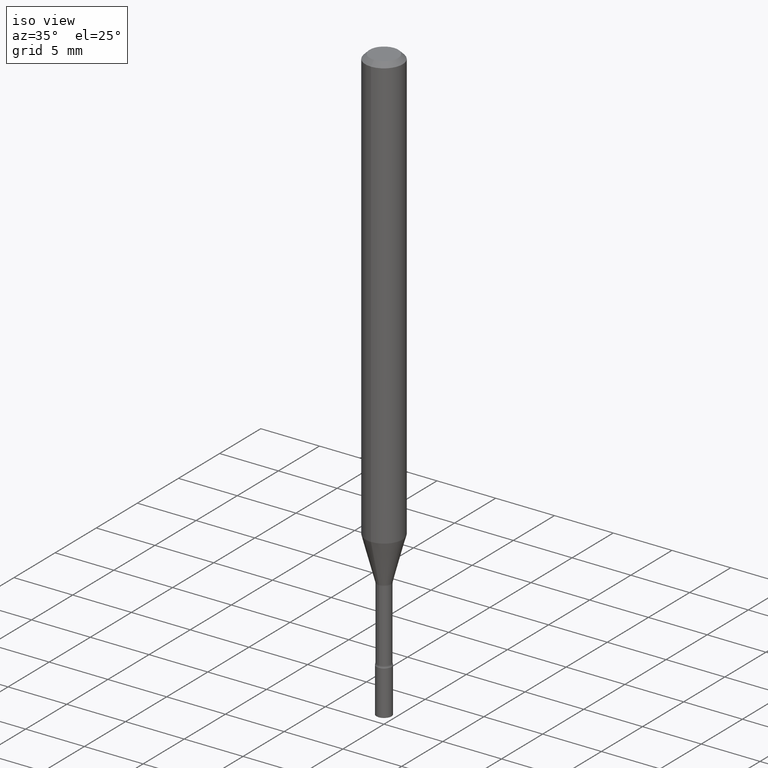
[diagram: clean part render]
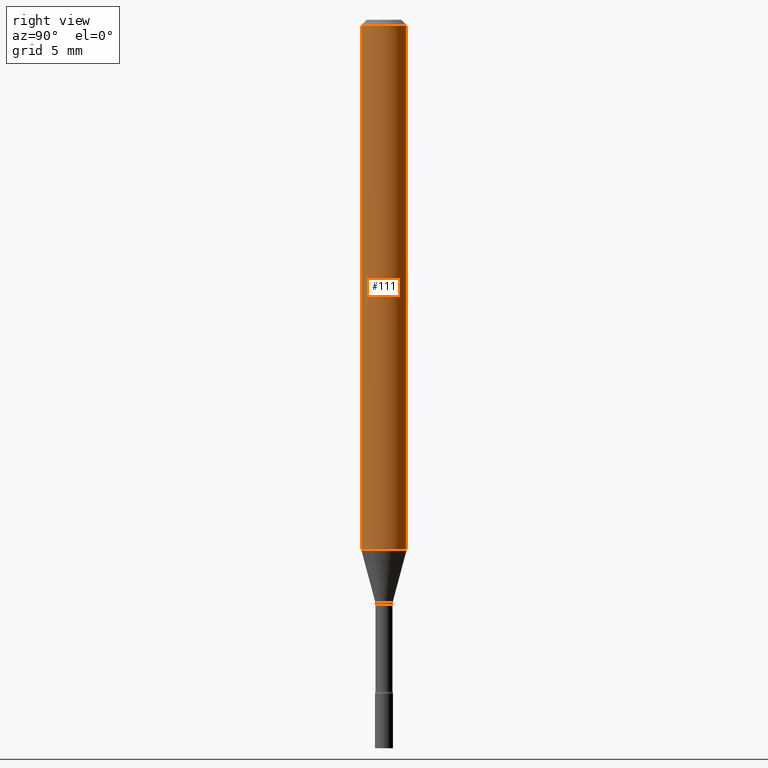
[diagram: tour spotlight — one face highlighted and labeled with its STEP entity id]
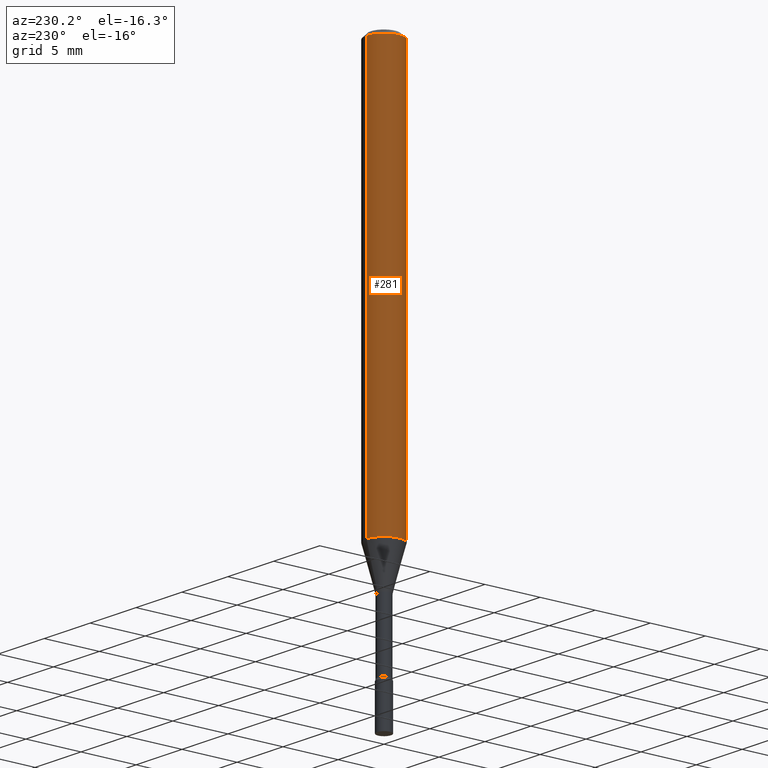
[diagram: tour spotlight — one face highlighted and labeled with its STEP entity id]
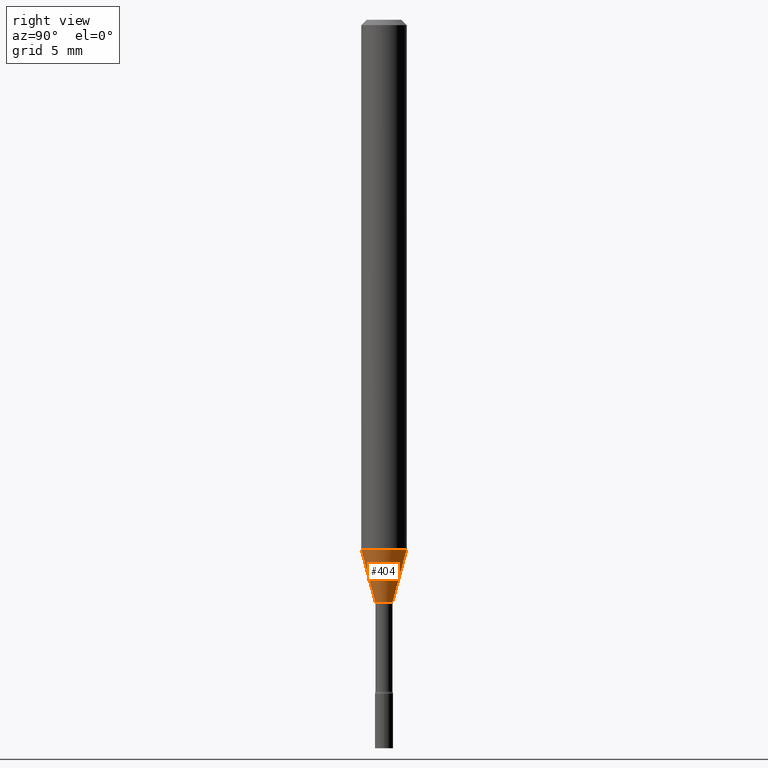
[diagram: tour spotlight — one face highlighted and labeled with its STEP entity id]
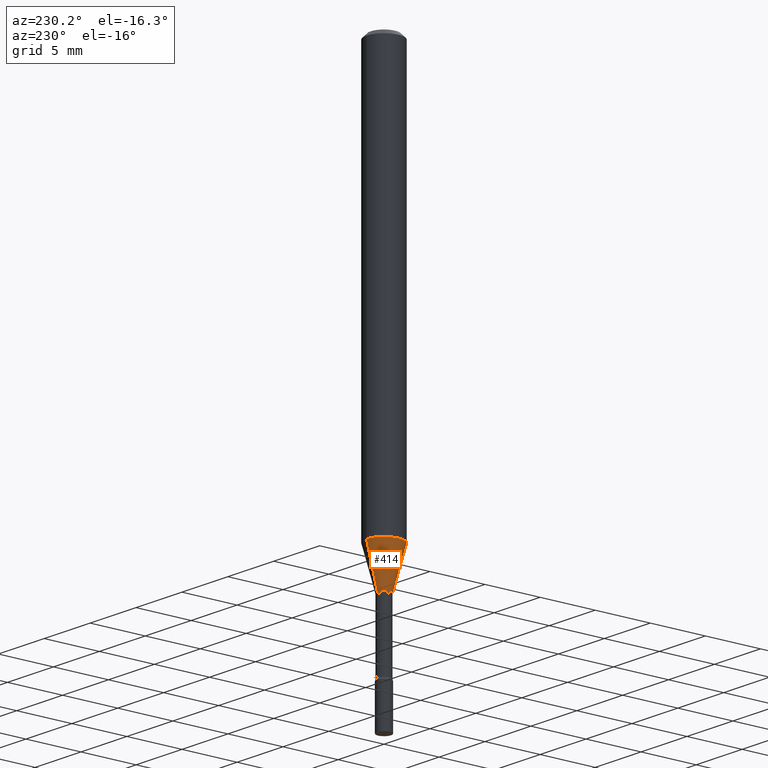
[diagram: tour spotlight — one face highlighted and labeled with its STEP entity id]
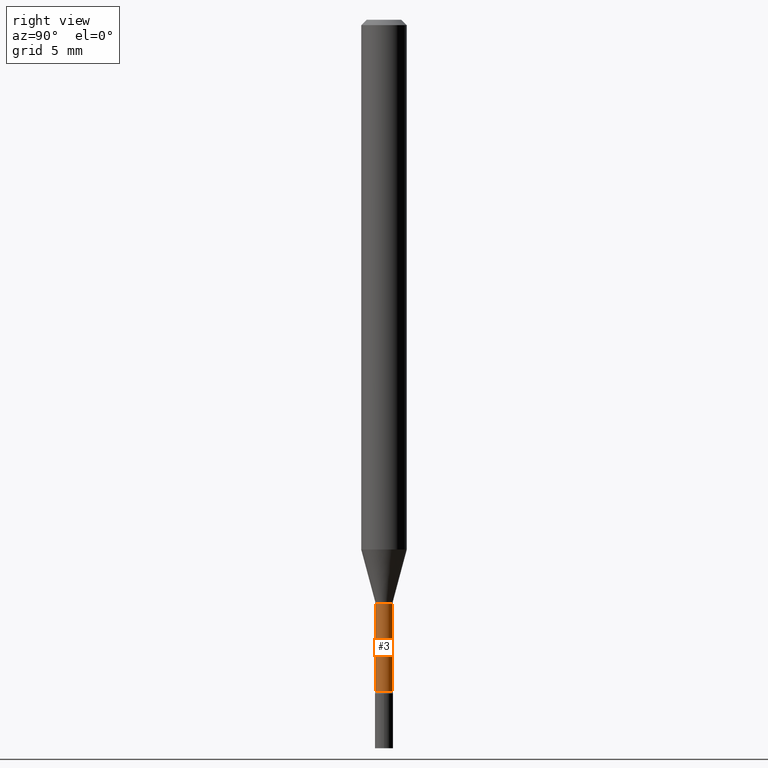
[diagram: tour spotlight — one face highlighted and labeled with its STEP entity id]
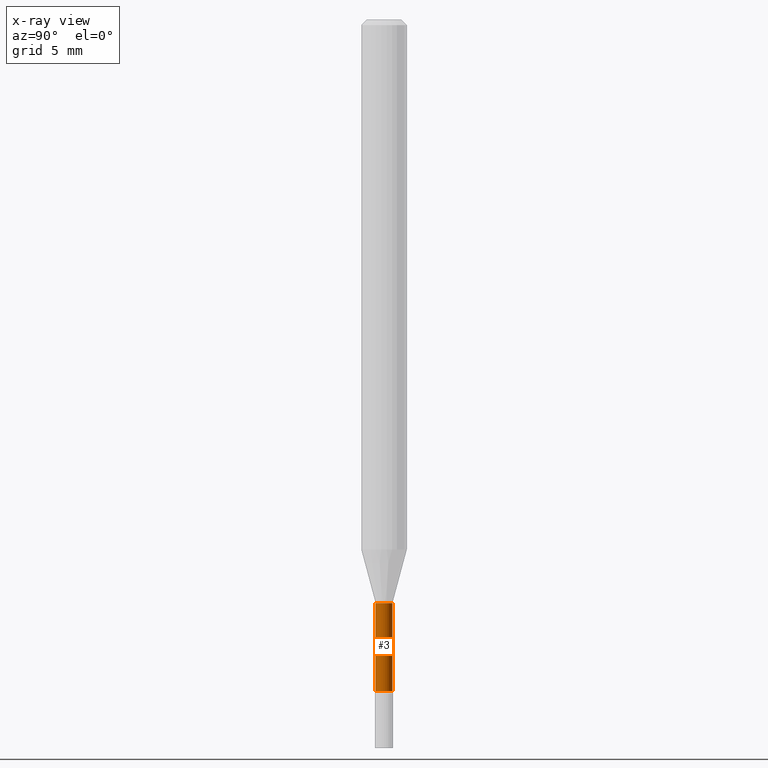
[diagram: x-ray of the same camera — body ghosted, this tour face saturated]
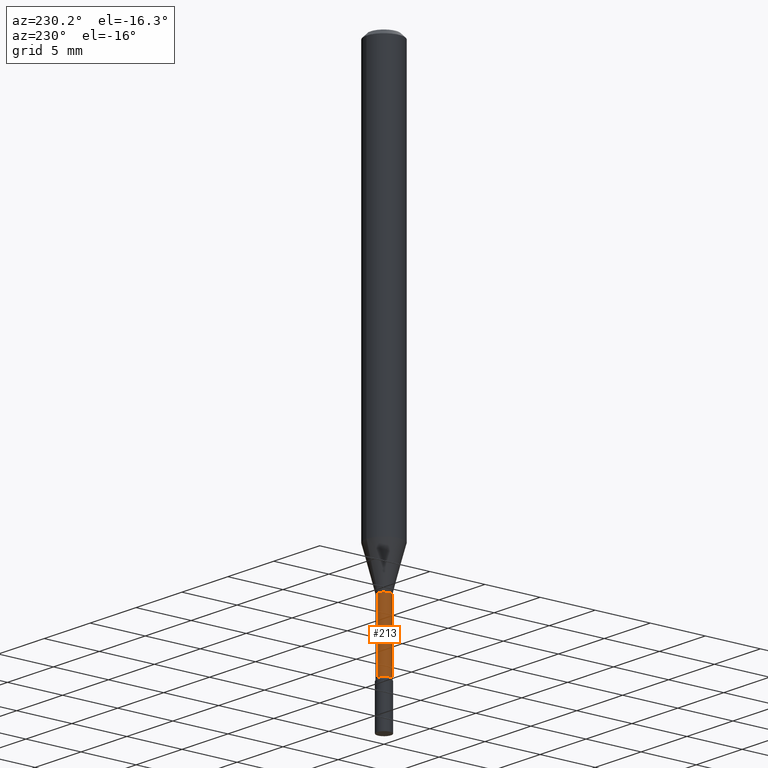
[diagram: tour spotlight — one face highlighted and labeled with its STEP entity id]
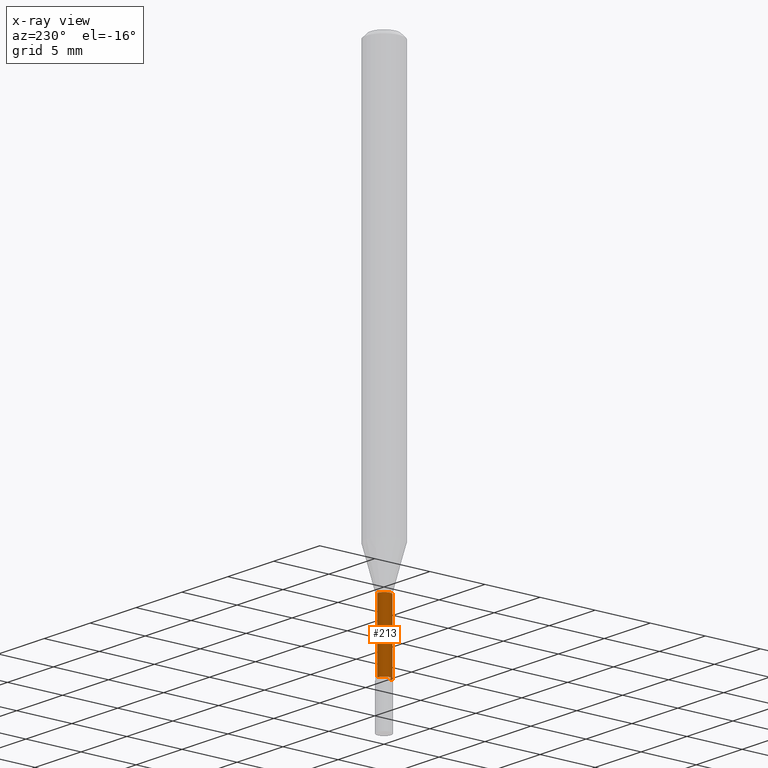
[diagram: x-ray of the same camera — body ghosted, this tour face saturated]
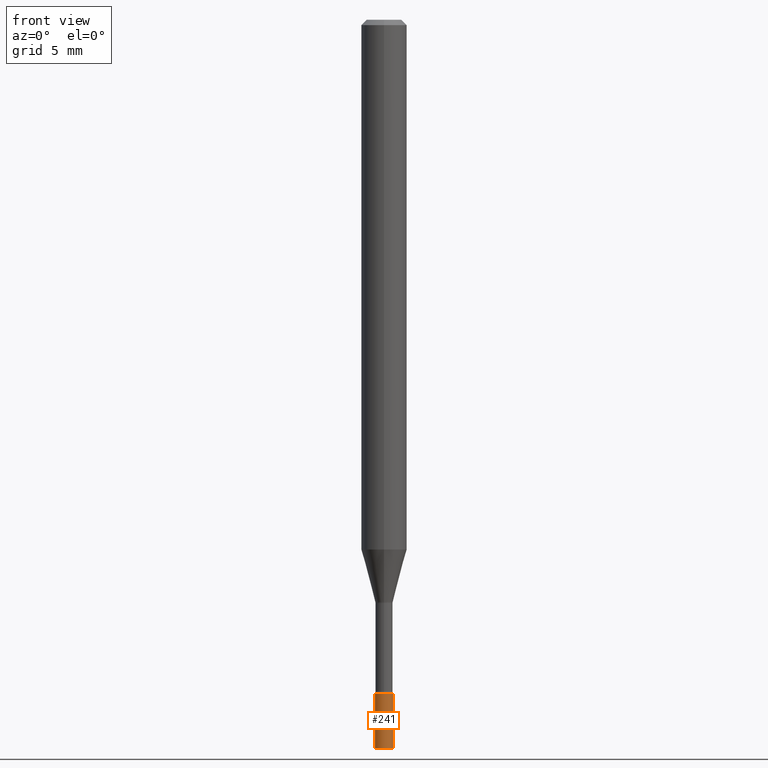
[diagram: tour spotlight — one face highlighted and labeled with its STEP entity id]
A machine part: a face-by-face anatomy tour. The part has 18 B-rep faces; the first image is the clean iso view, then the 7 largest visible faces are spotlighted one at a time (largest first), each with its STEP entity span.

Face 1 — right view, entity #111. In plain terms, the highlighted cylindrical surface (edge-blend (fillet) strip) has radius 1.5875 mm, axis along (-0, 0, 1).
Definition (entity closure, byte-faithful):
#20 = DIRECTION ( 'NONE',  ( -2.445421542730464824E-29, 3.491549022800303850E-15, 1.000000000000000000 ) ) ;
#37 = ORIENTED_EDGE ( 'NONE', *, *, #203, .F. ) ;
#40 = ORIENTED_EDGE ( 'NONE', *, *, #195, .F. ) ;
#50 = DIRECTION ( 'NONE',  ( -6.982962677686265922E-15, -1.000000000000000000, 3.483106191921935554E-15 ) ) ;
#58 = DIRECTION ( 'NONE',  ( -6.982962677686265922E-15, -1.000000000000000000, 4.370956789862821150E-15 ) ) ;
#88 = VECTOR ( 'NONE', #20, 39.37007874015748143 ) ;
#97 = LINE ( 'NONE', #495, #103 ) ;
#100 = DIRECTION ( 'NONE',  ( -2.445421542730464824E-29, 3.491549022800304245E-15, 1.000000000000000000 ) ) ;
#103 = VECTOR ( 'NONE', #343, 39.37007874015748143 ) ;
#111 = ADVANCED_FACE ( 'NONE', ( #133 ), #330, .T. ) ;
#112 = ORIENTED_EDGE ( 'NONE', *, *, #230, .T. ) ;
#114 = AXIS2_PLACEMENT_3D ( 'NONE', #338, #498, #58 ) ;
#133 = FACE_OUTER_BOUND ( 'NONE', #516, .T. ) ;
#134 = CARTESIAN_POINT ( 'NONE',  ( -4.364351673553912750E-16, -0.06250000000000005551, -0.01499999999999981209 ) ) ;
#151 = CARTESIAN_POINT ( 'NONE',  ( -4.364351673553561707E-16, -0.06250000000000509315, -1.454450018504813924 ) ) ;
#168 = CARTESIAN_POINT ( 'NONE',  ( 3.668132314095704891E-31, -5.237323534200467140E-17, -0.01500000000000003067 ) ) ;
#184 = CIRCLE ( 'NONE', #114, 0.06250000000000000000 ) ;
#189 = ORIENTED_EDGE ( 'NONE', *, *, #261, .T. ) ;
#195 = EDGE_CURVE ( 'NONE', #235, #352, #309, .T. ) ;
#203 = EDGE_CURVE ( 'NONE', #403, #235, #334, .T. ) ;
#230 = EDGE_CURVE ( 'NONE', #263, #352, #97, .T. ) ;
#235 = VERTEX_POINT ( 'NONE', #134 ) ;
#261 = EDGE_CURVE ( 'NONE', #403, #263, #184, .T. ) ;
#263 = VERTEX_POINT ( 'NONE', #299 ) ;
#290 = DIRECTION ( 'NONE',  ( -6.982962677686265922E-15, -1.000000000000000000, 3.491549022800304245E-15 ) ) ;
#299 = CARTESIAN_POINT ( 'NONE',  ( 4.440892098500979177E-16, 0.06249999999999489991, -1.454450018504814368 ) ) ;
#307 = CARTESIAN_POINT ( 'NONE',  ( 4.440892098500983121E-16, 0.06249999999999995143, -0.01500000000000024751 ) ) ;
#309 = CIRCLE ( 'NONE', #416, 0.06250000000000000000 ) ;
#330 = CYLINDRICAL_SURFACE ( 'NONE', #373, 0.06250000000000000000 ) ;
#334 = LINE ( 'NONE', #451, #88 ) ;
#338 = CARTESIAN_POINT ( 'NONE',  ( 3.556743408076396207E-29, -5.078283540822369655E-15, -1.454450018504814146 ) ) ;
#343 = DIRECTION ( 'NONE',  ( -2.445421542730464824E-29, 3.491549022800303850E-15, 1.000000000000000000 ) ) ;
#352 = VERTEX_POINT ( 'NONE', #307 ) ;
#373 = AXIS2_PLACEMENT_3D ( 'NONE', #454, #499, #290 ) ;
#403 = VERTEX_POINT ( 'NONE', #151 ) ;
#416 = AXIS2_PLACEMENT_3D ( 'NONE', #168, #100, #50 ) ;
#451 = CARTESIAN_POINT ( 'NONE',  ( -4.364351673553916201E-16, -0.06250000000000000000, 2.182218139250190153E-16 ) ) ;
#454 = CARTESIAN_POINT ( 'NONE',  ( 0.000000000000000000, 0.000000000000000000, 0.000000000000000000 ) ) ;
#495 = CARTESIAN_POINT ( 'NONE',  ( 4.440892098500625669E-16, 0.06250000000000000000, -2.182218139250190153E-16 ) ) ;
#498 = DIRECTION ( 'NONE',  ( -2.445421542730464824E-29, 3.491549022800304245E-15, 1.000000000000000000 ) ) ;
#499 = DIRECTION ( 'NONE',  ( -2.445421542730464824E-29, 3.491549022800304245E-15, 1.000000000000000000 ) ) ;
#516 = EDGE_LOOP ( 'NONE', ( #189, #112, #40, #37 ) ) ;

Face 2 — auxiliary view, entity #281. In plain terms, the highlighted cylindrical surface (edge-blend (fillet) strip) has radius 1.5875 mm, axis along (-0, 0, 1).
Definition (entity closure, byte-faithful):
#20 = DIRECTION ( 'NONE',  ( -2.445421542730464824E-29, 3.491549022800303850E-15, 1.000000000000000000 ) ) ;
#30 = ORIENTED_EDGE ( 'NONE', *, *, #230, .F. ) ;
#70 = DIRECTION ( 'NONE',  ( -6.982962677686265922E-15, -1.000000000000000000, 4.370956789862821150E-15 ) ) ;
#88 = VECTOR ( 'NONE', #20, 39.37007874015748143 ) ;
#97 = LINE ( 'NONE', #495, #103 ) ;
#103 = VECTOR ( 'NONE', #343, 39.37007874015748143 ) ;
#134 = CARTESIAN_POINT ( 'NONE',  ( -4.364351673553912750E-16, -0.06250000000000005551, -0.01499999999999981209 ) ) ;
#151 = CARTESIAN_POINT ( 'NONE',  ( -4.364351673553561707E-16, -0.06250000000000509315, -1.454450018504813924 ) ) ;
#180 = CARTESIAN_POINT ( 'NONE',  ( 3.556743408076396207E-29, -5.078283540822369655E-15, -1.454450018504814146 ) ) ;
#191 = DIRECTION ( 'NONE',  ( -2.445421542730464824E-29, 3.491549022800304245E-15, 1.000000000000000000 ) ) ;
#202 = DIRECTION ( 'NONE',  ( -6.982962677686265922E-15, -1.000000000000000000, 3.491549022800304245E-15 ) ) ;
#203 = EDGE_CURVE ( 'NONE', #403, #235, #334, .T. ) ;
#214 = FACE_OUTER_BOUND ( 'NONE', #322, .T. ) ;
#230 = EDGE_CURVE ( 'NONE', #263, #352, #97, .T. ) ;
#235 = VERTEX_POINT ( 'NONE', #134 ) ;
#237 = AXIS2_PLACEMENT_3D ( 'NONE', #180, #312, #70 ) ;
#263 = VERTEX_POINT ( 'NONE', #299 ) ;
#274 = CARTESIAN_POINT ( 'NONE',  ( 3.668132314095704891E-31, -5.237323534200467140E-17, -0.01500000000000003067 ) ) ;
#281 = ADVANCED_FACE ( 'NONE', ( #214 ), #487, .T. ) ;
#299 = CARTESIAN_POINT ( 'NONE',  ( 4.440892098500979177E-16, 0.06249999999999489991, -1.454450018504814368 ) ) ;
#307 = CARTESIAN_POINT ( 'NONE',  ( 4.440892098500983121E-16, 0.06249999999999995143, -0.01500000000000024751 ) ) ;
#312 = DIRECTION ( 'NONE',  ( -2.445421542730464824E-29, 3.491549022800304245E-15, 1.000000000000000000 ) ) ;
#320 = ORIENTED_EDGE ( 'NONE', *, *, #356, .T. ) ;
#322 = EDGE_LOOP ( 'NONE', ( #30, #320, #350, #519 ) ) ;
#334 = LINE ( 'NONE', #451, #88 ) ;
#340 = CIRCLE ( 'NONE', #436, 0.06250000000000000000 ) ;
#343 = DIRECTION ( 'NONE',  ( -2.445421542730464824E-29, 3.491549022800303850E-15, 1.000000000000000000 ) ) ;
#350 = ORIENTED_EDGE ( 'NONE', *, *, #203, .T. ) ;
#352 = VERTEX_POINT ( 'NONE', #307 ) ;
#356 = EDGE_CURVE ( 'NONE', #263, #403, #429, .T. ) ;
#370 = CARTESIAN_POINT ( 'NONE',  ( 0.000000000000000000, 0.000000000000000000, 0.000000000000000000 ) ) ;
#393 = AXIS2_PLACEMENT_3D ( 'NONE', #370, #410, #202 ) ;
#403 = VERTEX_POINT ( 'NONE', #151 ) ;
#410 = DIRECTION ( 'NONE',  ( -2.445421542730464824E-29, 3.491549022800304245E-15, 1.000000000000000000 ) ) ;
#429 = CIRCLE ( 'NONE', #237, 0.06250000000000000000 ) ;
#436 = AXIS2_PLACEMENT_3D ( 'NONE', #274, #191, #439 ) ;
#439 = DIRECTION ( 'NONE',  ( -6.982962677686265922E-15, -1.000000000000000000, 3.483106191921935554E-15 ) ) ;
#451 = CARTESIAN_POINT ( 'NONE',  ( -4.364351673553916201E-16, -0.06250000000000000000, 2.182218139250190153E-16 ) ) ;
#487 = CYLINDRICAL_SURFACE ( 'NONE', #393, 0.06250000000000000000 ) ;
#488 = EDGE_CURVE ( 'NONE', #352, #235, #340, .T. ) ;
#495 = CARTESIAN_POINT ( 'NONE',  ( 4.440892098500625669E-16, 0.06250000000000000000, -2.182218139250190153E-16 ) ) ;
#519 = ORIENTED_EDGE ( 'NONE', *, *, #488, .F. ) ;

Face 3 — right view, entity #404. In plain terms, the highlighted conical surface has half-angle 15 deg.
Definition (entity closure, byte-faithful):
#28 = DIRECTION ( 'NONE',  ( -1.807323732225330534E-15, -0.2588190451025182415, 0.9659258262890689783 ) ) ;
#46 = CARTESIAN_POINT ( 'NONE',  ( 3.908009831146620796E-29, -5.579818312959846669E-15, -1.598092501787272912 ) ) ;
#58 = DIRECTION ( 'NONE',  ( -6.982962677686265922E-15, -1.000000000000000000, 4.370956789862821150E-15 ) ) ;
#64 = CARTESIAN_POINT ( 'NONE',  ( -1.676687031750347678E-16, -0.02401111260566956770, -1.598092501787272912 ) ) ;
#68 = EDGE_CURVE ( 'NONE', #314, #481, #446, .T. ) ;
#72 = CARTESIAN_POINT ( 'NONE',  ( 3.073492131224302841E-16, 0.02401111260565840649, -1.598092501787272912 ) ) ;
#81 = ORIENTED_EDGE ( 'NONE', *, *, #431, .F. ) ;
#114 = AXIS2_PLACEMENT_3D ( 'NONE', #338, #498, #58 ) ;
#118 = EDGE_LOOP ( 'NONE', ( #510, #257, #268, #81 ) ) ;
#140 = VECTOR ( 'NONE', #174, 39.37007874015748143 ) ;
#151 = CARTESIAN_POINT ( 'NONE',  ( -4.364351673553561707E-16, -0.06250000000000509315, -1.454450018504813924 ) ) ;
#163 = AXIS2_PLACEMENT_3D ( 'NONE', #351, #475, #193 ) ;
#174 = DIRECTION ( 'NONE',  ( 1.839019923739600710E-15, 0.2588190451025250138, 0.9659258262890670910 ) ) ;
#184 = CIRCLE ( 'NONE', #114, 0.06250000000000000000 ) ;
#193 = DIRECTION ( 'NONE',  ( -6.982962677686265133E-15, -1.000000000000000000, 0.000000000000000000 ) ) ;
#201 = DIRECTION ( 'NONE',  ( -2.445421542730464824E-29, 3.491549022800304245E-15, 1.000000000000000000 ) ) ;
#208 = CONICAL_SURFACE ( 'NONE', #163, 0.02401111260566398883, 0.2617993877991502960 ) ;
#218 = LINE ( 'NONE', #380, #140 ) ;
#227 = AXIS2_PLACEMENT_3D ( 'NONE', #46, #201, #465 ) ;
#242 = CARTESIAN_POINT ( 'NONE',  ( -1.676687031750347678E-16, -0.02401111260566956770, -1.598092501787272912 ) ) ;
#257 = ORIENTED_EDGE ( 'NONE', *, *, #441, .T. ) ;
#261 = EDGE_CURVE ( 'NONE', #403, #263, #184, .T. ) ;
#263 = VERTEX_POINT ( 'NONE', #299 ) ;
#268 = ORIENTED_EDGE ( 'NONE', *, *, #261, .F. ) ;
#299 = CARTESIAN_POINT ( 'NONE',  ( 4.440892098500979177E-16, 0.06249999999999489991, -1.454450018504814368 ) ) ;
#314 = VERTEX_POINT ( 'NONE', #242 ) ;
#338 = CARTESIAN_POINT ( 'NONE',  ( 3.556743408076396207E-29, -5.078283540822369655E-15, -1.454450018504814146 ) ) ;
#351 = CARTESIAN_POINT ( 'NONE',  ( 3.908009831146620796E-29, -5.579818312959846669E-15, -1.598092501787272912 ) ) ;
#380 = CARTESIAN_POINT ( 'NONE',  ( 1.706092163947622560E-16, 0.02401111260565840996, -1.598092501787272912 ) ) ;
#390 = FACE_OUTER_BOUND ( 'NONE', #118, .T. ) ;
#403 = VERTEX_POINT ( 'NONE', #151 ) ;
#404 = ADVANCED_FACE ( 'NONE', ( #390 ), #208, .T. ) ;
#424 = LINE ( 'NONE', #64, #490 ) ;
#431 = EDGE_CURVE ( 'NONE', #314, #403, #424, .T. ) ;
#441 = EDGE_CURVE ( 'NONE', #481, #263, #218, .T. ) ;
#446 = CIRCLE ( 'NONE', #227, 0.02401111260566398883 ) ;
#465 = DIRECTION ( 'NONE',  ( -6.982962677686265133E-15, -1.000000000000000000, 0.000000000000000000 ) ) ;
#475 = DIRECTION ( 'NONE',  ( -2.445421542730464824E-29, 3.491549022800304245E-15, 1.000000000000000000 ) ) ;
#481 = VERTEX_POINT ( 'NONE', #72 ) ;
#490 = VECTOR ( 'NONE', #28, 39.37007874015748143 ) ;
#498 = DIRECTION ( 'NONE',  ( -2.445421542730464824E-29, 3.491549022800304245E-15, 1.000000000000000000 ) ) ;
#510 = ORIENTED_EDGE ( 'NONE', *, *, #68, .T. ) ;

Face 4 — auxiliary view, entity #414. In plain terms, the highlighted conical surface has half-angle 15 deg.
Definition (entity closure, byte-faithful):
#28 = DIRECTION ( 'NONE',  ( -1.807323732225330534E-15, -0.2588190451025182415, 0.9659258262890689783 ) ) ;
#64 = CARTESIAN_POINT ( 'NONE',  ( -1.676687031750347678E-16, -0.02401111260566956770, -1.598092501787272912 ) ) ;
#70 = DIRECTION ( 'NONE',  ( -6.982962677686265922E-15, -1.000000000000000000, 4.370956789862821150E-15 ) ) ;
#72 = CARTESIAN_POINT ( 'NONE',  ( 3.073492131224302841E-16, 0.02401111260565840649, -1.598092501787272912 ) ) ;
#76 = CIRCLE ( 'NONE', #95, 0.02401111260566398883 ) ;
#83 = ORIENTED_EDGE ( 'NONE', *, *, #356, .F. ) ;
#95 = AXIS2_PLACEMENT_3D ( 'NONE', #183, #266, #430 ) ;
#99 = DIRECTION ( 'NONE',  ( -6.982962677686265133E-15, -1.000000000000000000, 0.000000000000000000 ) ) ;
#109 = DIRECTION ( 'NONE',  ( -2.445421542730464824E-29, 3.491549022800304245E-15, 1.000000000000000000 ) ) ;
#140 = VECTOR ( 'NONE', #174, 39.37007874015748143 ) ;
#151 = CARTESIAN_POINT ( 'NONE',  ( -4.364351673553561707E-16, -0.06250000000000509315, -1.454450018504813924 ) ) ;
#174 = DIRECTION ( 'NONE',  ( 1.839019923739600710E-15, 0.2588190451025250138, 0.9659258262890670910 ) ) ;
#180 = CARTESIAN_POINT ( 'NONE',  ( 3.556743408076396207E-29, -5.078283540822369655E-15, -1.454450018504814146 ) ) ;
#183 = CARTESIAN_POINT ( 'NONE',  ( 3.908009831146620796E-29, -5.579818312959846669E-15, -1.598092501787272912 ) ) ;
#186 = EDGE_LOOP ( 'NONE', ( #399, #190, #298, #83 ) ) ;
#190 = ORIENTED_EDGE ( 'NONE', *, *, #480, .T. ) ;
#218 = LINE ( 'NONE', #380, #140 ) ;
#233 = FACE_OUTER_BOUND ( 'NONE', #186, .T. ) ;
#237 = AXIS2_PLACEMENT_3D ( 'NONE', #180, #312, #70 ) ;
#242 = CARTESIAN_POINT ( 'NONE',  ( -1.676687031750347678E-16, -0.02401111260566956770, -1.598092501787272912 ) ) ;
#263 = VERTEX_POINT ( 'NONE', #299 ) ;
#266 = DIRECTION ( 'NONE',  ( -2.445421542730464824E-29, 3.491549022800304245E-15, 1.000000000000000000 ) ) ;
#287 = CONICAL_SURFACE ( 'NONE', #426, 0.02401111260566398883, 0.2617993877991502960 ) ;
#298 = ORIENTED_EDGE ( 'NONE', *, *, #431, .T. ) ;
#299 = CARTESIAN_POINT ( 'NONE',  ( 4.440892098500979177E-16, 0.06249999999999489991, -1.454450018504814368 ) ) ;
#312 = DIRECTION ( 'NONE',  ( -2.445421542730464824E-29, 3.491549022800304245E-15, 1.000000000000000000 ) ) ;
#314 = VERTEX_POINT ( 'NONE', #242 ) ;
#356 = EDGE_CURVE ( 'NONE', #263, #403, #429, .T. ) ;
#380 = CARTESIAN_POINT ( 'NONE',  ( 1.706092163947622560E-16, 0.02401111260565840996, -1.598092501787272912 ) ) ;
#399 = ORIENTED_EDGE ( 'NONE', *, *, #441, .F. ) ;
#402 = CARTESIAN_POINT ( 'NONE',  ( 3.908009831146620796E-29, -5.579818312959846669E-15, -1.598092501787272912 ) ) ;
#403 = VERTEX_POINT ( 'NONE', #151 ) ;
#414 = ADVANCED_FACE ( 'NONE', ( #233 ), #287, .T. ) ;
#424 = LINE ( 'NONE', #64, #490 ) ;
#426 = AXIS2_PLACEMENT_3D ( 'NONE', #402, #109, #99 ) ;
#429 = CIRCLE ( 'NONE', #237, 0.06250000000000000000 ) ;
#430 = DIRECTION ( 'NONE',  ( -6.982962677686265133E-15, -1.000000000000000000, 0.000000000000000000 ) ) ;
#431 = EDGE_CURVE ( 'NONE', #314, #403, #424, .T. ) ;
#441 = EDGE_CURVE ( 'NONE', #481, #263, #218, .T. ) ;
#480 = EDGE_CURVE ( 'NONE', #481, #314, #76, .T. ) ;
#481 = VERTEX_POINT ( 'NONE', #72 ) ;
#490 = VECTOR ( 'NONE', #28, 39.37007874015748143 ) ;

Face 5 — right view, entity #3. An x-ray twin of the same camera follows (body ghosted, this face saturated) — the face is partly hidden behind the body. In plain terms, the highlighted cylindrical surface (edge-blend (fillet) strip) has radius 0.5969 mm, axis along (-0, 0, 1).
Definition (entity closure, byte-faithful):
#3 = ADVANCED_FACE ( 'NONE', ( #420 ), #341, .T. ) ;
#16 = ORIENTED_EDGE ( 'NONE', *, *, #142, .F. ) ;
#21 = EDGE_CURVE ( 'NONE', #482, #311, #138, .T. ) ;
#53 = CIRCLE ( 'NONE', #145, 0.02350000000000000352 ) ;
#69 = CARTESIAN_POINT ( 'NONE',  ( 1.723066134218695118E-16, 0.02349999999999356423, -1.843461651584688887 ) ) ;
#73 = EDGE_LOOP ( 'NONE', ( #401, #130, #16, #389 ) ) ;
#93 = CARTESIAN_POINT ( 'NONE',  ( 3.917503656175060877E-29, -5.593373503719994068E-15, -1.601974787463810834 ) ) ;
#102 = DIRECTION ( 'NONE',  ( -2.445421542730464824E-29, 3.491549022800303850E-15, 1.000000000000000000 ) ) ;
#130 = ORIENTED_EDGE ( 'NONE', *, *, #21, .T. ) ;
#138 = LINE ( 'NONE', #234, #383 ) ;
#142 = EDGE_CURVE ( 'NONE', #243, #311, #297, .T. ) ;
#143 = CARTESIAN_POINT ( 'NONE',  ( 4.508040835982679892E-29, -6.436536728160355128E-15, -1.843461651584688887 ) ) ;
#145 = AXIS2_PLACEMENT_3D ( 'NONE', #143, #461, #342 ) ;
#177 = VECTOR ( 'NONE', #224, 39.37007874015748143 ) ;
#192 = VERTEX_POINT ( 'NONE', #415 ) ;
#197 = CARTESIAN_POINT ( 'NONE',  ( 1.669775429036686571E-16, 0.02349999999999441078, -1.601974787463810834 ) ) ;
#199 = DIRECTION ( 'NONE',  ( -2.445421542730464824E-29, 3.491549022800304245E-15, 1.000000000000000000 ) ) ;
#210 = DIRECTION ( 'NONE',  ( -6.982962677686265922E-15, -1.000000000000000000, 0.000000000000000000 ) ) ;
#215 = AXIS2_PLACEMENT_3D ( 'NONE', #93, #288, #210 ) ;
#221 = LINE ( 'NONE', #310, #177 ) ;
#224 = DIRECTION ( 'NONE',  ( -2.445421542730464824E-29, 3.491549022800303850E-15, 1.000000000000000000 ) ) ;
#234 = CARTESIAN_POINT ( 'NONE',  ( 1.669775429036235194E-16, 0.02350000000000000352, -8.205140203580716672E-17 ) ) ;
#243 = VERTEX_POINT ( 'NONE', #419 ) ;
#288 = DIRECTION ( 'NONE',  ( -2.445421542730464824E-29, 3.491549022800304245E-15, 1.000000000000000000 ) ) ;
#297 = CIRCLE ( 'NONE', #215, 0.02350000000000000352 ) ;
#300 = CARTESIAN_POINT ( 'NONE',  ( 0.000000000000000000, 0.000000000000000000, 0.000000000000000000 ) ) ;
#310 = CARTESIAN_POINT ( 'NONE',  ( -1.640996229256272766E-16, -0.02350000000000000352, 8.205140203580716672E-17 ) ) ;
#311 = VERTEX_POINT ( 'NONE', #197 ) ;
#341 = CYLINDRICAL_SURFACE ( 'NONE', #405, 0.02350000000000000352 ) ;
#342 = DIRECTION ( 'NONE',  ( -6.982962677686265922E-15, -1.000000000000000000, 0.000000000000000000 ) ) ;
#383 = VECTOR ( 'NONE', #102, 39.37007874015748143 ) ;
#389 = ORIENTED_EDGE ( 'NONE', *, *, #497, .F. ) ;
#401 = ORIENTED_EDGE ( 'NONE', *, *, #453, .T. ) ;
#405 = AXIS2_PLACEMENT_3D ( 'NONE', #300, #199, #442 ) ;
#415 = CARTESIAN_POINT ( 'NONE',  ( -1.640996229255822129E-16, -0.02350000000000643935, -1.843461651584688887 ) ) ;
#419 = CARTESIAN_POINT ( 'NONE',  ( -1.640996229255880800E-16, -0.02350000000000559280, -1.601974787463810834 ) ) ;
#420 = FACE_OUTER_BOUND ( 'NONE', #73, .T. ) ;
#442 = DIRECTION ( 'NONE',  ( -6.982962677686265922E-15, -1.000000000000000000, 3.491549022800304639E-15 ) ) ;
#453 = EDGE_CURVE ( 'NONE', #192, #482, #53, .T. ) ;
#461 = DIRECTION ( 'NONE',  ( -2.445421542730464824E-29, 3.491549022800304245E-15, 1.000000000000000000 ) ) ;
#482 = VERTEX_POINT ( 'NONE', #69 ) ;
#497 = EDGE_CURVE ( 'NONE', #192, #243, #221, .T. ) ;

Face 6 — auxiliary view, entity #213. An x-ray twin of the same camera follows (body ghosted, this face saturated) — the face is partly hidden behind the body. In plain terms, the highlighted cylindrical surface (edge-blend (fillet) strip) has radius 0.5969 mm, axis along (-0, 0, 1).
Definition (entity closure, byte-faithful):
#18 = CIRCLE ( 'NONE', #136, 0.02350000000000000352 ) ;
#21 = EDGE_CURVE ( 'NONE', #482, #311, #138, .T. ) ;
#45 = EDGE_CURVE ( 'NONE', #482, #192, #339, .T. ) ;
#69 = CARTESIAN_POINT ( 'NONE',  ( 1.723066134218695118E-16, 0.02349999999999356423, -1.843461651584688887 ) ) ;
#79 = DIRECTION ( 'NONE',  ( -2.445421542730464824E-29, 3.491549022800304245E-15, 1.000000000000000000 ) ) ;
#91 = ORIENTED_EDGE ( 'NONE', *, *, #384, .F. ) ;
#102 = DIRECTION ( 'NONE',  ( -2.445421542730464824E-29, 3.491549022800303850E-15, 1.000000000000000000 ) ) ;
#136 = AXIS2_PLACEMENT_3D ( 'NONE', #317, #79, #472 ) ;
#138 = LINE ( 'NONE', #234, #383 ) ;
#158 = DIRECTION ( 'NONE',  ( -2.445421542730464824E-29, 3.491549022800304245E-15, 1.000000000000000000 ) ) ;
#161 = CYLINDRICAL_SURFACE ( 'NONE', #435, 0.02350000000000000352 ) ;
#175 = DIRECTION ( 'NONE',  ( -6.982962677686265922E-15, -1.000000000000000000, 3.491549022800304639E-15 ) ) ;
#177 = VECTOR ( 'NONE', #224, 39.37007874015748143 ) ;
#192 = VERTEX_POINT ( 'NONE', #415 ) ;
#197 = CARTESIAN_POINT ( 'NONE',  ( 1.669775429036686571E-16, 0.02349999999999441078, -1.601974787463810834 ) ) ;
#213 = ADVANCED_FACE ( 'NONE', ( #296 ), #161, .T. ) ;
#221 = LINE ( 'NONE', #310, #177 ) ;
#224 = DIRECTION ( 'NONE',  ( -2.445421542730464824E-29, 3.491549022800303850E-15, 1.000000000000000000 ) ) ;
#228 = EDGE_LOOP ( 'NONE', ( #374, #229, #359, #91 ) ) ;
#229 = ORIENTED_EDGE ( 'NONE', *, *, #45, .T. ) ;
#234 = CARTESIAN_POINT ( 'NONE',  ( 1.669775429036235194E-16, 0.02350000000000000352, -8.205140203580716672E-17 ) ) ;
#243 = VERTEX_POINT ( 'NONE', #419 ) ;
#296 = FACE_OUTER_BOUND ( 'NONE', #228, .T. ) ;
#310 = CARTESIAN_POINT ( 'NONE',  ( -1.640996229256272766E-16, -0.02350000000000000352, 8.205140203580716672E-17 ) ) ;
#311 = VERTEX_POINT ( 'NONE', #197 ) ;
#317 = CARTESIAN_POINT ( 'NONE',  ( 3.917503656175060877E-29, -5.593373503719994068E-15, -1.601974787463810834 ) ) ;
#339 = CIRCLE ( 'NONE', #502, 0.02350000000000000352 ) ;
#359 = ORIENTED_EDGE ( 'NONE', *, *, #497, .T. ) ;
#367 = CARTESIAN_POINT ( 'NONE',  ( 4.508040835982679892E-29, -6.436536728160355128E-15, -1.843461651584688887 ) ) ;
#374 = ORIENTED_EDGE ( 'NONE', *, *, #21, .F. ) ;
#376 = CARTESIAN_POINT ( 'NONE',  ( 0.000000000000000000, 0.000000000000000000, 0.000000000000000000 ) ) ;
#383 = VECTOR ( 'NONE', #102, 39.37007874015748143 ) ;
#384 = EDGE_CURVE ( 'NONE', #311, #243, #18, .T. ) ;
#415 = CARTESIAN_POINT ( 'NONE',  ( -1.640996229255822129E-16, -0.02350000000000643935, -1.843461651584688887 ) ) ;
#419 = CARTESIAN_POINT ( 'NONE',  ( -1.640996229255880800E-16, -0.02350000000000559280, -1.601974787463810834 ) ) ;
#423 = DIRECTION ( 'NONE',  ( -2.445421542730464824E-29, 3.491549022800304245E-15, 1.000000000000000000 ) ) ;
#435 = AXIS2_PLACEMENT_3D ( 'NONE', #376, #423, #175 ) ;
#472 = DIRECTION ( 'NONE',  ( -6.982962677686265922E-15, -1.000000000000000000, 0.000000000000000000 ) ) ;
#482 = VERTEX_POINT ( 'NONE', #69 ) ;
#486 = DIRECTION ( 'NONE',  ( -6.982962677686265922E-15, -1.000000000000000000, 0.000000000000000000 ) ) ;
#497 = EDGE_CURVE ( 'NONE', #192, #243, #221, .T. ) ;
#502 = AXIS2_PLACEMENT_3D ( 'NONE', #367, #158, #486 ) ;

Face 7 — front view, entity #241. In plain terms, the highlighted cylindrical surface (edge-blend (fillet) strip) has radius 0.635 mm, axis along (-0, 0, 1).
Definition (entity closure, byte-faithful):
#14 = EDGE_CURVE ( 'NONE', #252, #445, #107, .T. ) ;
#38 = CARTESIAN_POINT ( 'NONE',  ( 0.02500000000000000139, -1.745740669421566924E-16, 1.219044193948984123E-30 ) ) ;
#57 = CARTESIAN_POINT ( 'NONE',  ( -0.02500000000000000139, -6.543465893333030170E-15, -1.849999999999999867 ) ) ;
#59 = AXIS2_PLACEMENT_3D ( 'NONE', #427, #212, #379 ) ;
#63 = CARTESIAN_POINT ( 'NONE',  ( -0.02500000000000000139, -6.543465893333030170E-15, -2.000000000000000000 ) ) ;
#65 = CIRCLE ( 'NONE', #365, 0.02500000000000000139 ) ;
#77 = DIRECTION ( 'NONE',  ( -2.445468806185136877E-29, 3.491481338843145188E-15, 1.000000000000000000 ) ) ;
#78 = ORIENTED_EDGE ( 'NONE', *, *, #344, .T. ) ;
#85 = VERTEX_POINT ( 'NONE', #63 ) ;
#107 = CIRCLE ( 'NONE', #59, 0.02500000000000000139 ) ;
#121 = DIRECTION ( 'NONE',  ( -2.445468806185136597E-29, 3.491481338843145583E-15, 1.000000000000000000 ) ) ;
#131 = CARTESIAN_POINT ( 'NONE',  ( -0.02500000000000000139, 1.776356839400250563E-16, -1.229733772563726656E-30 ) ) ;
#167 = LINE ( 'NONE', #131, #353 ) ;
#171 = AXIS2_PLACEMENT_3D ( 'NONE', #457, #249, #253 ) ;
#173 = VECTOR ( 'NONE', #77, 39.37007874015748143 ) ;
#181 = EDGE_CURVE ( 'NONE', #85, #252, #167, .T. ) ;
#212 = DIRECTION ( 'NONE',  ( -2.445468806185136597E-29, 3.491481338843145583E-15, 1.000000000000000000 ) ) ;
#241 = ADVANCED_FACE ( 'NONE', ( #459 ), #462, .T. ) ;
#246 = DIRECTION ( 'NONE',  ( -2.445468806185136877E-29, 3.491481338843145188E-15, 1.000000000000000000 ) ) ;
#249 = DIRECTION ( 'NONE',  ( -2.445468806185136597E-29, 3.491481338843145583E-15, 1.000000000000000000 ) ) ;
#252 = VERTEX_POINT ( 'NONE', #57 ) ;
#253 = DIRECTION ( 'NONE',  ( 1.000000000000000000, -6.982962677686267499E-15, 4.876176775795936353E-29 ) ) ;
#267 = ORIENTED_EDGE ( 'NONE', *, *, #181, .F. ) ;
#271 = LINE ( 'NONE', #38, #173 ) ;
#278 = ORIENTED_EDGE ( 'NONE', *, *, #14, .F. ) ;
#316 = VERTEX_POINT ( 'NONE', #368 ) ;
#321 = CARTESIAN_POINT ( 'NONE',  ( 4.890937612370273194E-29, -6.982962677686291165E-15, -2.000000000000000000 ) ) ;
#344 = EDGE_CURVE ( 'NONE', #85, #316, #65, .T. ) ;
#353 = VECTOR ( 'NONE', #246, 39.37007874015748143 ) ;
#365 = AXIS2_PLACEMENT_3D ( 'NONE', #321, #121, #444 ) ;
#368 = CARTESIAN_POINT ( 'NONE',  ( 0.02500000000000000139, -7.157536744628447044E-15, -2.000000000000000000 ) ) ;
#379 = DIRECTION ( 'NONE',  ( 1.000000000000000000, -6.982962677686254878E-15, 0.000000000000000000 ) ) ;
#427 = CARTESIAN_POINT ( 'NONE',  ( 4.524117291442502256E-29, -6.459240476859818795E-15, -1.849999999999999867 ) ) ;
#434 = EDGE_LOOP ( 'NONE', ( #267, #78, #438, #278 ) ) ;
#438 = ORIENTED_EDGE ( 'NONE', *, *, #479, .T. ) ;
#444 = DIRECTION ( 'NONE',  ( 1.000000000000000000, -6.982962677686254878E-15, 0.000000000000000000 ) ) ;
#445 = VERTEX_POINT ( 'NONE', #504 ) ;
#457 = CARTESIAN_POINT ( 'NONE',  ( 0.000000000000000000, 0.000000000000000000, 0.000000000000000000 ) ) ;
#459 = FACE_OUTER_BOUND ( 'NONE', #434, .T. ) ;
#462 = CYLINDRICAL_SURFACE ( 'NONE', #171, 0.02500000000000000139 ) ;
#479 = EDGE_CURVE ( 'NONE', #316, #445, #271, .T. ) ;
#504 = CARTESIAN_POINT ( 'NONE',  ( 0.02500000000000000139, -6.633814543801975463E-15, -1.849999999999999867 ) ) ;